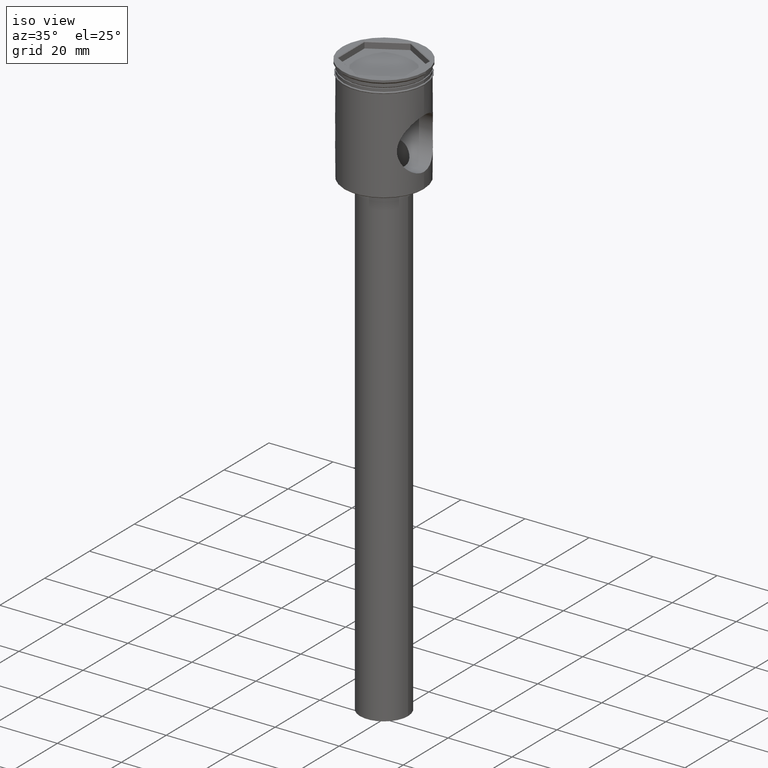
[diagram: clean part render]
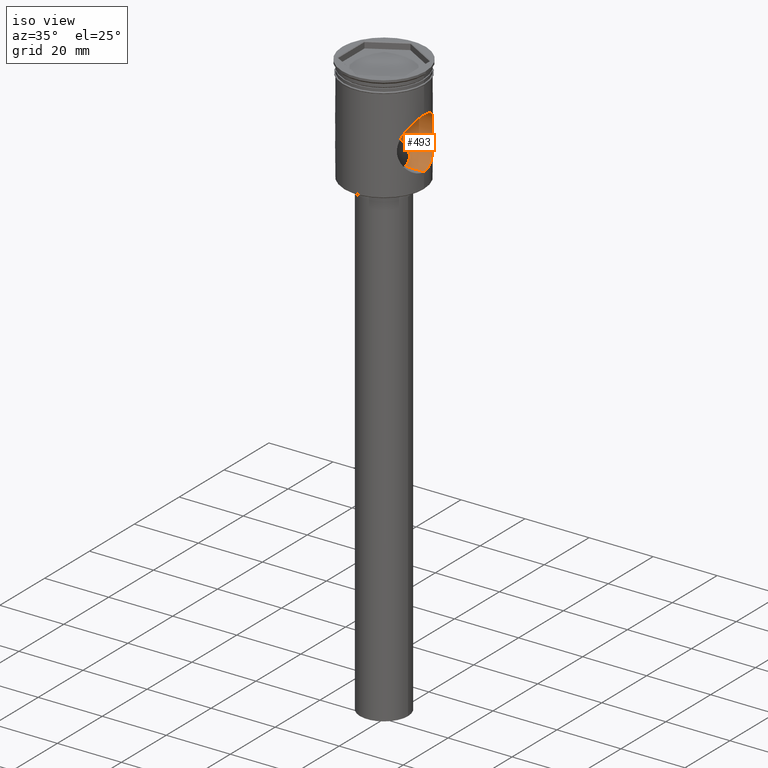
[diagram: same view with one face highlighted and labeled with its STEP entity id]
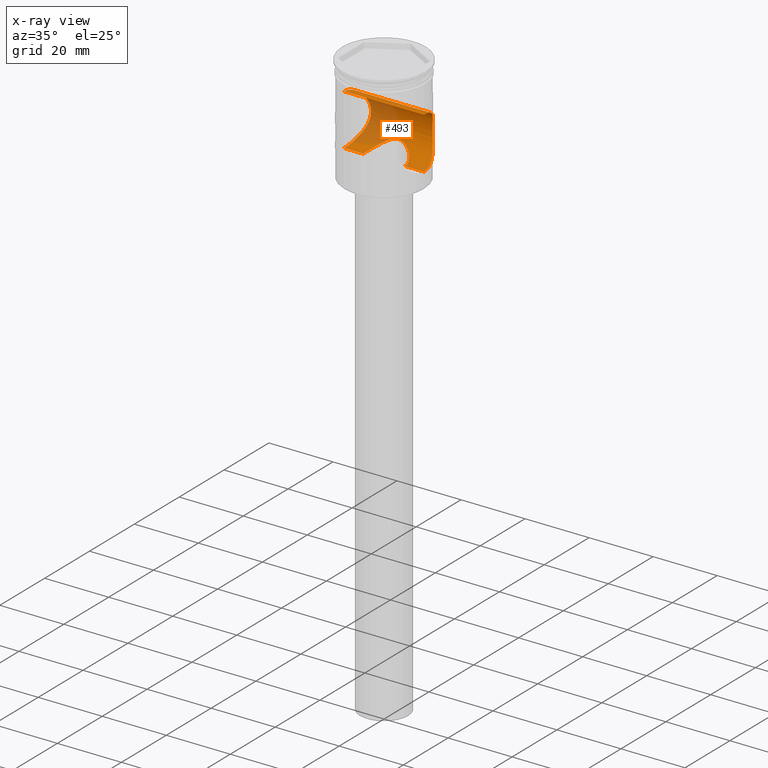
[diagram: x-ray of the same camera — body ghosted, the highlighted face saturated]
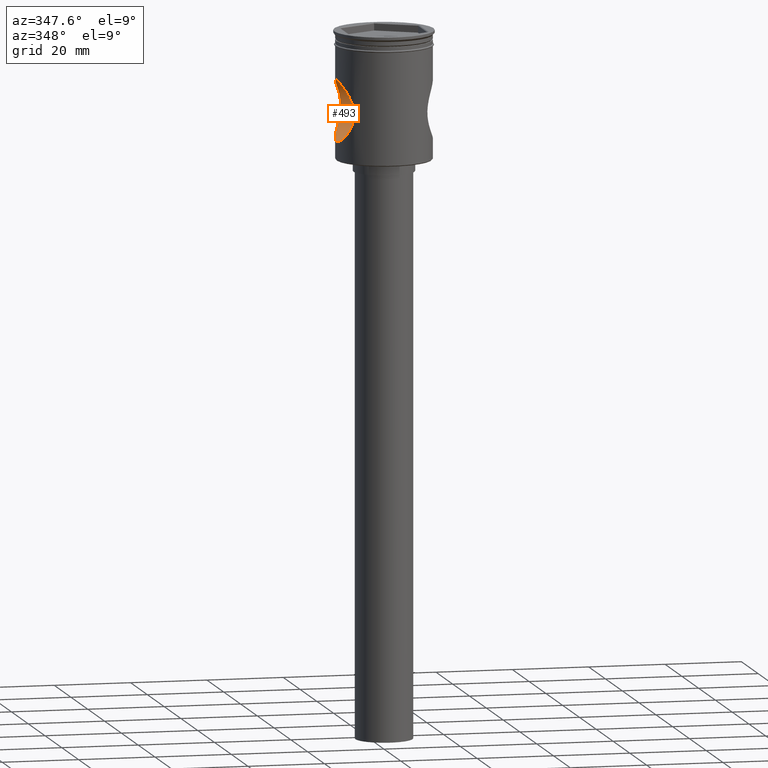
[diagram: same view with one face highlighted and labeled with its STEP entity id]
A machine part, iso view. The second image highlights one B-rep face of the part: STEP entity #493.
The next image is the same camera in x-ray: the body ghosted, the highlighted face saturated — about 34% of this face is hidden behind the body in this view.
A second angle (auxiliary view) of the same face is appended — the face is thin or edge-on in the first view.
In plain terms, the highlighted cylindrical surface (edge-blend (fillet) strip) has radius 8 mm, axis along (1, -0, -0).
Its self-contained STEP definition (entity closure, byte-faithful):
#17 = CARTESIAN_POINT ( 'NONE',  ( 4.842386437345511219, 4.354578003074164982, -27.21988011370752858 ) ) ;
#23 = CARTESIAN_POINT ( 'NONE',  ( -0.4366942562931317440, 6.489173612761688581, -25.17890074306679082 ) ) ;
#32 = CARTESIAN_POINT ( 'NONE',  ( -3.443395240271013957, 5.516634271870333173, -26.29565160357131148 ) ) ;
#34 = CARTESIAN_POINT ( 'NONE',  ( -10.95468395994246968, 6.033861169773390820, -15.22247198273765179 ) ) ;
#37 = CARTESIAN_POINT ( 'NONE',  ( 6.488266832233685832, 0.4514152564364683484, -28.49045779491664732 ) ) ;
#44 = CARTESIAN_POINT ( 'NONE',  ( 5.105775027705655056, 4.044212011964167353, -27.41335446562899136 ) ) ;
#56 = CARTESIAN_POINT ( 'NONE',  ( -12.49104983426664717, 0.5449417703514869427, -28.48603655335807261 ) ) ;
#65 = CARTESIAN_POINT ( 'NONE',  ( -13.00000000000000178, 0.000000000000000000, -20.50000000000000355 ) ) ;
#72 = CARTESIAN_POINT ( 'NONE',  ( -11.32275814528974500, 5.311017539796694997, -26.50426606429732601 ) ) ;
#78 = VECTOR ( 'NONE', #1514, 1000.000000000000000 ) ;
#81 = CARTESIAN_POINT ( 'NONE',  ( -11.49979938796715118, 4.920626020369353704, -26.82866744699284567 ) ) ;
#83 = CARTESIAN_POINT ( 'NONE',  ( 10.24149294623592965, 7.171072586796541692, -16.91585289741309595 ) ) ;
#92 = CARTESIAN_POINT ( 'NONE',  ( 10.41453676133786033, 6.920961814154462211, -24.54462048307798128 ) ) ;
#100 = CARTESIAN_POINT ( 'NONE',  ( 9.604895432773121300, 7.999748985399197210, -20.77841958597585403 ) ) ;
#102 = AXIS2_PLACEMENT_3D ( 'NONE', #65, #698, #949 ) ;
#110 = CARTESIAN_POINT ( 'NONE',  ( 11.50119995780600846, 4.917095492503141152, -14.16884486330757120 ) ) ;
#111 = B_SPLINE_CURVE_WITH_KNOTS ( 'NONE', 3,
 ( #1212, #1105, #37, #1217, #391, #627, #507, #985, #737, #1465, #872, #44, #17, #1346, #277, #1330, #1090, #152, #760, #257, #146, #611, #167, #1230, #1096, #979, #23, #514, #494, #633, #1476, #974, #383, #1455, #32, #376, #619, #1460, #865, #553, #1246, #887, #1392, #655, #1031, #1138, #424, #433 ),
 .UNSPECIFIED., .F., .F.,
 ( 4, 2, 2, 2, 2, 2, 2, 2, 2, 2, 2, 2, 2, 2, 2, 2, 2, 2, 2, 2, 2, 2, 2, 4 ),
 ( 0.02158872808425614867, 0.02226116012117745555, 0.02293359215809876589, 0.02360602419502007276, 0.02427845623194137964, 0.02562332030578399686, 0.02696818437962661408, 0.02831304845346922783, 0.02965791252731184158, 0.03033034456423315192, 0.03100277660115446227, 0.03167520863807576914, 0.03234764067499707602, 0.03302007271191838289, 0.03369250474883968977, 0.03503736882268231045, 0.03570980085960362427, 0.03638223289652493114, 0.03772709697036755183, 0.03839952900728886565, 0.03907196104421017946, 0.04041682511805280709, 0.04176168919189544859, 0.04310655326573807622 ),
 .UNSPECIFIED. ) ;
#117 = CARTESIAN_POINT ( 'NONE',  ( 12.22805391727019675, 2.640680350465369308, -28.06978779834291515 ) ) ;
#118 = ORIENTED_EDGE ( 'NONE', *, *, #1341, .T. ) ;
#146 = CARTESIAN_POINT ( 'NONE',  ( 1.567728193471718878, 6.311950699062609083, -25.41578842498790181 ) ) ;
#152 = CARTESIAN_POINT ( 'NONE',  ( 2.371671329341344503, 6.055323795821049515, -25.72950291132741540 ) ) ;
#155 = CARTESIAN_POINT ( 'NONE',  ( -11.58231855636714513, 4.706562070356852701, -14.02588132130155962 ) ) ;
#156 = CARTESIAN_POINT ( 'NONE',  ( 12.45636595211378861, 1.077990071471292666, -12.56832314098377346 ) ) ;
#167 = CARTESIAN_POINT ( 'NONE',  ( 0.9182724156034712815, 6.438696789920491881, -25.24814010544798393 ) ) ;
#192 = EDGE_CURVE ( 'NONE', #381, #250, #111, .T. ) ;
#197 = CARTESIAN_POINT ( 'NONE',  ( -11.04913184632836121, 5.848685773200739568, -25.96419292266337919 ) ) ;
#203 = CARTESIAN_POINT ( 'NONE',  ( -6.500000000000000888, 0.000000000000000000, -28.50000000000000355 ) ) ;
#206 = CARTESIAN_POINT ( 'NONE',  ( -12.49999999999999645, 0.000000000000000000, -28.50000000000000355 ) ) ;
#214 = CARTESIAN_POINT ( 'NONE',  ( 12.49999999999999289, 0.5455086926773380362, -28.50000000000000000 ) ) ;
#222 = CARTESIAN_POINT ( 'NONE',  ( 6.500000000000000888, -1.382494513617927609E-22, -28.50000000000000711 ) ) ;
#250 = VERTEX_POINT ( 'NONE', #203 ) ;
#257 = CARTESIAN_POINT ( 'NONE',  ( 1.776713398838708491, 6.256010653273696320, -25.48724118525975513 ) ) ;
#265 = CARTESIAN_POINT ( 'NONE',  ( -12.04102128605738464, 3.365482873782087658, -13.23757297846051451 ) ) ;
#277 = CARTESIAN_POINT ( 'NONE',  ( 3.959905581841436817, 5.170370486631040485, -26.61232910843518695 ) ) ;
#280 = CARTESIAN_POINT ( 'NONE',  ( -12.49999999999999645, 1.530843252841608374E-15, -12.50000000000000178 ) ) ;
#287 = CARTESIAN_POINT ( 'NONE',  ( -11.82426725651903610, 4.061341696050350336, -13.60264837205234301 ) ) ;
#294 = CARTESIAN_POINT ( 'NONE',  ( -12.32614486164619372, 2.144181392186815138, -28.22599079984303927 ) ) ;
#318 = CARTESIAN_POINT ( 'NONE',  ( -9.615781582082339796, 7.986738915949612938, -21.03451077291008531 ) ) ;
#319 = CARTESIAN_POINT ( 'NONE',  ( 10.24633185769106802, 7.164154995734958398, -24.09758546550434488 ) ) ;
#322 = ORIENTED_EDGE ( 'NONE', *, *, #1118, .T. ) ;
#327 = CARTESIAN_POINT ( 'NONE',  ( -10.95618371808392233, 6.020532543485914267, -25.77431588019686615 ) ) ;
#330 = CARTESIAN_POINT ( 'NONE',  ( 10.77000853576665840, 6.353706358841936463, -15.61224821672883678 ) ) ;
#337 = CARTESIAN_POINT ( 'NONE',  ( 12.32774079225238495, 2.134726252461476292, -12.77147006255823136 ) ) ;
#376 = CARTESIAN_POINT ( 'NONE',  ( -3.943738554741762492, 5.182453481993340105, -26.60192598326029412 ) ) ;
#381 = VERTEX_POINT ( 'NONE', #222 ) ;
#383 = CARTESIAN_POINT ( 'NONE',  ( -2.911808415109434556, 5.814893890624561301, -25.99602155835484396 ) ) ;
#386 = CARTESIAN_POINT ( 'NONE',  ( -11.22925266099212571, 5.494954958430610326, -14.68017047912132789 ) ) ;
#391 = CARTESIAN_POINT ( 'NONE',  ( 6.406015369792370073, 1.123501218572548588, -28.42378064234844359 ) ) ;
#402 = CARTESIAN_POINT ( 'NONE',  ( -12.45680753857803147, 1.072351860696458381, -12.56763034230890774 ) ) ;
#424 = CARTESIAN_POINT ( 'NONE',  ( -6.500000000000000888, 0.4558328422930144064, -28.50000000000000355 ) ) ;
#428 = CARTESIAN_POINT ( 'NONE',  ( -12.49999999999999645, 0.2724455289350976028, -28.50000000000000000 ) ) ;
#433 = CARTESIAN_POINT ( 'NONE',  ( -6.500000000000000888, 0.000000000000000000, -28.50000000000000355 ) ) ;
#443 = CARTESIAN_POINT ( 'NONE',  ( -10.77171733329285530, 6.344673314144587017, -25.37958406506655251 ) ) ;
#445 = CARTESIAN_POINT ( 'NONE',  ( 9.778867081615890910, 7.786427190026567580, -18.64438907348872476 ) ) ;
#455 = CARTESIAN_POINT ( 'NONE',  ( 12.03968295628938812, 3.370349911399050047, -13.23978673405736117 ) ) ;
#463 = CARTESIAN_POINT ( 'NONE',  ( 10.02037738876441253, 7.473797691934480625, -17.63469963449613331 ) ) ;
#493 = ADVANCED_FACE ( 'NONE', ( #1255 ), #662, .F. ) ;
#494 = CARTESIAN_POINT ( 'NONE',  ( -1.102789313917039493, 6.409565676674444212, -25.28778943264921608 ) ) ;
#504 = CARTESIAN_POINT ( 'NONE',  ( -10.76964293615448653, 6.354292206984882618, -15.61311065325000591 ) ) ;
#507 = CARTESIAN_POINT ( 'NONE',  ( 6.257880797991184352, 1.771240096149340859, -28.30445041192191979 ) ) ;
#514 = CARTESIAN_POINT ( 'NONE',  ( -0.8819394974814362964, 6.443776747593307874, -25.24122637797536584 ) ) ;
#534 = CARTESIAN_POINT ( 'NONE',  ( -10.24171529436143402, 7.170737983946684935, -16.91536847051583692 ) ) ;
#545 = CARTESIAN_POINT ( 'NONE',  ( -12.22681975302657520, 2.645907749991195601, -28.06777968347508434 ) ) ;
#553 = CARTESIAN_POINT ( 'NONE',  ( -5.093693961073637588, 4.043069069474488408, -27.40561135238450063 ) ) ;
#558 = CARTESIAN_POINT ( 'NONE',  ( 10.95569943340932717, 6.032167288263485361, -15.22028665405100512 ) ) ;
#566 = CARTESIAN_POINT ( 'NONE',  ( 9.951847861737379120, 7.567903109691757280, -23.14472692481474425 ) ) ;
#571 = EDGE_CURVE ( 'NONE', #1541, #1404, #1548, .T. ) ;
#574 = CARTESIAN_POINT ( 'NONE',  ( 9.662429422409399393, 7.930242071786063995, -21.58801890745425212 ) ) ;
#583 = CARTESIAN_POINT ( 'NONE',  ( 9.831927431485986801, 7.719646222588846030, -18.38418844340872127 ) ) ;
#590 = CARTESIAN_POINT ( 'NONE',  ( 11.83084558445469980, 4.061114290533304860, -27.41204444593460821 ) ) ;
#609 = CARTESIAN_POINT ( 'NONE',  ( -13.00000000000000178, 0.000000000000000000, -28.50000000000000355 ) ) ;
#611 = CARTESIAN_POINT ( 'NONE',  ( 1.136941649589109815, 6.403581576073868575, -25.29581489063218314 ) ) ;
#614 = CARTESIAN_POINT ( 'NONE',  ( 12.49999999999999822, 0.2689421781267094524, -12.50000000000000178 ) ) ;
#619 = CARTESIAN_POINT ( 'NONE',  ( -4.254044028838499081, 4.931232074828433731, -26.80903156589973335 ) ) ;
#624 = CARTESIAN_POINT ( 'NONE',  ( -11.49685725809058567, 4.911092195449596076, -14.17966420493785051 ) ) ;
#627 = CARTESIAN_POINT ( 'NONE',  ( 6.314429166602933741, 1.557970540833260698, -28.34992244866697320 ) ) ;
#633 = CARTESIAN_POINT ( 'NONE',  ( -1.750904379679536049, 6.275272073080965463, -25.46415145505980249 ) ) ;
#648 = CARTESIAN_POINT ( 'NONE',  ( -9.947500648090192854, 7.573601934444265105, -17.87138436146137366 ) ) ;
#655 = CARTESIAN_POINT ( 'NONE',  ( -6.130100723253989692, 2.204832021863320168, -28.20172597471266585 ) ) ;
#658 = CARTESIAN_POINT ( 'NONE',  ( -9.694572521403607368, 7.891132293869996595, -21.84205955273028010 ) ) ;
#662 = CYLINDRICAL_SURFACE ( 'NONE', #102, 8.000000000000000000 ) ;
#665 = CARTESIAN_POINT ( 'NONE',  ( -10.02253038761470982, 7.470924704462464483, -23.37288695449094433 ) ) ;
#681 = CARTESIAN_POINT ( 'NONE',  ( -10.41397768299478166, 6.921782864204723218, -24.54315654720842232 ) ) ;
#689 = CARTESIAN_POINT ( 'NONE',  ( 11.74563317290944831, 4.282692903467038903, -13.73805650301568093 ) ) ;
#690 = VERTEX_POINT ( 'NONE', #1464 ) ;
#698 = DIRECTION ( 'NONE',  ( 1.000000000000000000, -0.000000000000000000, -0.000000000000000000 ) ) ;
#699 = VECTOR ( 'NONE', #1094, 1000.000000000000000 ) ;
#716 = CARTESIAN_POINT ( 'NONE',  ( 9.695983281617307270, 7.889400511741192723, -21.85205995452213301 ) ) ;
#731 = EDGE_CURVE ( 'NONE', #381, #1541, #966, .T. ) ;
#737 = CARTESIAN_POINT ( 'NONE',  ( 6.046048051909437504, 2.396210685450310685, -28.13556698857915350 ) ) ;
#739 = ORIENTED_EDGE ( 'NONE', *, *, #571, .T. ) ;
#745 = CARTESIAN_POINT ( 'NONE',  ( -12.32814927920563264, 2.133064077394900337, -12.77081634138414401 ) ) ;
#753 = VERTEX_POINT ( 'NONE', #280 ) ;
#760 = CARTESIAN_POINT ( 'NONE',  ( 2.178074106906161322, 6.127835913298589787, -25.64391591625614097 ) ) ;
#781 = CARTESIAN_POINT ( 'NONE',  ( -9.833011243020195025, 7.718267162390876734, -22.62081358739451176 ) ) ;
#783 = LINE ( 'NONE', #1165, #78 ) ;
#793 = CARTESIAN_POINT ( 'NONE',  ( -9.660877953051818068, 7.932130301633682379, -21.57471352266809106 ) ) ;
#801 = CARTESIAN_POINT ( 'NONE',  ( -11.97255694559601125, 3.600821400007697459, -27.64858792036709545 ) ) ;
#807 = CARTESIAN_POINT ( 'NONE',  ( -9.823930086259025529, 7.730428572254550268, -18.37155159375936719 ) ) ;
#819 = CARTESIAN_POINT ( 'NONE',  ( -11.82492588981186543, 4.059453444830931623, -27.39848256787114167 ) ) ;
#820 = CARTESIAN_POINT ( 'NONE',  ( 12.32937529947440147, 2.124696089697953649, -28.23112845639077761 ) ) ;
#837 = CARTESIAN_POINT ( 'NONE',  ( 11.50038868166273787, 4.919615502726670364, -26.82980181432884237 ) ) ;
#865 = CARTESIAN_POINT ( 'NONE',  ( -4.828471368447618595, 4.356373481888452304, -27.21236811691835200 ) ) ;
#872 = CARTESIAN_POINT ( 'NONE',  ( 5.581559358810435079, 3.357198915067975520, -27.77181794394044090 ) ) ;
#882 = CARTESIAN_POINT ( 'NONE',  ( -12.43066710745117298, 1.341388092945101862, -12.60866053316501834 ) ) ;
#887 = CARTESIAN_POINT ( 'NONE',  ( -5.573416845374117301, 3.370210849722758528, -27.76559106472542027 ) ) ;
#909 = CARTESIAN_POINT ( 'NONE',  ( -13.00000000000000178, 9.797174393178827630E-16, -12.50000000000000178 ) ) ;
#920 = ORIENTED_EDGE ( 'NONE', *, *, #1377, .F. ) ;
#921 = CARTESIAN_POINT ( 'NONE',  ( -9.604845950803452936, 7.999808392904742327, -19.96072037956296086 ) ) ;
#926 = CARTESIAN_POINT ( 'NONE',  ( 10.41350288148657377, 6.922544769963280054, -16.45796141815630520 ) ) ;
#928 = CARTESIAN_POINT ( 'NONE',  ( 12.49999999999999645, 0.000000000000000000, -28.50000000000000355 ) ) ;
#934 = CARTESIAN_POINT ( 'NONE',  ( 9.616846497738414712, 7.985458352474513966, -21.05224936486945353 ) ) ;
#941 = CARTESIAN_POINT ( 'NONE',  ( 12.43000214087199851, 1.347259841825428239, -12.60970857887207153 ) ) ;
#949 = DIRECTION ( 'NONE',  ( 0.000000000000000000, 0.000000000000000000, -1.000000000000000000 ) ) ;
#966 = LINE ( 'NONE', #609, #699 ) ;
#974 = CARTESIAN_POINT ( 'NONE',  ( -2.725180543584479587, 5.904775050584463614, -25.89893258064565629 ) ) ;
#977 = CARTESIAN_POINT ( 'NONE',  ( -12.22865895483605314, 2.638290072440495848, -12.92921996348514924 ) ) ;
#979 = CARTESIAN_POINT ( 'NONE',  ( -0.2112592527433082568, 6.500583903981633327, -25.16287572114162430 ) ) ;
#985 = CARTESIAN_POINT ( 'NONE',  ( 6.123853245883847052, 2.190156383218281100, -28.19739908848461241 ) ) ;
#1007 = LINE ( 'NONE', #909, #1301 ) ;
#1031 = CARTESIAN_POINT ( 'NONE',  ( -6.265158911055189073, 1.788055899293668594, -28.31019858664084055 ) ) ;
#1043 = CARTESIAN_POINT ( 'NONE',  ( -9.604607193058786407, 8.000095042092121744, -20.76536489131949992 ) ) ;
#1057 = CARTESIAN_POINT ( 'NONE',  ( 11.82354718861211573, 4.063371894608730273, -13.60388813298232513 ) ) ;
#1066 = CARTESIAN_POINT ( 'NONE',  ( 10.95759851502932669, 6.017955333637137194, -25.77724630296188479 ) ) ;
#1072 = CARTESIAN_POINT ( 'NONE',  ( 10.68141965030587848, 6.495024738260809727, -25.17753358840528932 ) ) ;
#1090 = CARTESIAN_POINT ( 'NONE',  ( 2.935273651752975166, 5.813884523788740211, -26.00066674425234226 ) ) ;
#1091 = ORIENTED_EDGE ( 'NONE', *, *, #192, .F. ) ;
#1094 = DIRECTION ( 'NONE',  ( 1.000000000000000000, -0.000000000000000000, -0.000000000000000000 ) ) ;
#1096 = CARTESIAN_POINT ( 'NONE',  ( 0.2457798980664020194, 6.499370262285513178, -25.16456721221122095 ) ) ;
#1098 = CARTESIAN_POINT ( 'NONE',  ( -12.49134899006260824, 0.5368360781239408519, -12.51349676487751594 ) ) ;
#1105 = CARTESIAN_POINT ( 'NONE',  ( 6.500000000000005329, 0.2246396968458180821, -28.50000000000001421 ) ) ;
#1107 = CARTESIAN_POINT ( 'NONE',  ( -11.32051845556725489, 5.304942531477344403, -14.50641544213543455 ) ) ;
#1118 = EDGE_CURVE ( 'NONE', #690, #250, #783, .T. ) ;
#1132 = CARTESIAN_POINT ( 'NONE',  ( -12.45574482229450020, 1.085222749987466040, -28.43070192023093412 ) ) ;
#1138 = CARTESIAN_POINT ( 'NONE',  ( -6.450807618150798284, 0.9145715682114388123, -28.45989351112090660 ) ) ;
#1148 = CARTESIAN_POINT ( 'NONE',  ( -10.24506394556385125, 7.166030281330027840, -24.09455026104629738 ) ) ;
#1157 = DIRECTION ( 'NONE',  ( 1.000000000000000000, -0.000000000000000000, -0.000000000000000000 ) ) ;
#1164 = CARTESIAN_POINT ( 'NONE',  ( -9.650481006454381117, 7.945901119098953025, -19.42646661241498052 ) ) ;
#1165 = CARTESIAN_POINT ( 'NONE',  ( -13.00000000000000178, 0.000000000000000000, -28.50000000000000355 ) ) ;
#1166 = CARTESIAN_POINT ( 'NONE',  ( 12.49999999999999645, 0.000000000000000000, -28.50000000000000355 ) ) ;
#1171 = CARTESIAN_POINT ( 'NONE',  ( 12.46447579769007774, 1.079199628273470157, -28.44481018307721243 ) ) ;
#1179 = CARTESIAN_POINT ( 'NONE',  ( 11.32278361962054802, 5.310903790031502147, -26.50427824932999243 ) ) ;
#1186 = CARTESIAN_POINT ( 'NONE',  ( 9.604276544737977872, 8.000492014107765115, -19.96508625629939004 ) ) ;
#1202 = CARTESIAN_POINT ( 'NONE',  ( 12.49132987171840270, 0.5383245889663403894, -12.51352599534948418 ) ) ;
#1212 = CARTESIAN_POINT ( 'NONE',  ( 6.500000000000000888, -1.382494513617927609E-22, -28.50000000000000711 ) ) ;
#1216 = CARTESIAN_POINT ( 'NONE',  ( 12.49999999999999645, -3.475392982267206074E-20, -12.50000000000000178 ) ) ;
#1217 = CARTESIAN_POINT ( 'NONE',  ( 6.441058188089108683, 0.9023035174804565628, -28.45217202205977003 ) ) ;
#1219 = CARTESIAN_POINT ( 'NONE',  ( -11.74602063590885059, 4.281685285502878635, -13.73737400827888422 ) ) ;
#1230 = CARTESIAN_POINT ( 'NONE',  ( 0.4734485262106122860, 6.486592871054853937, -25.18249546061458943 ) ) ;
#1246 = CARTESIAN_POINT ( 'NONE',  ( -5.219067298266469201, 3.879969157369397070, -27.49875867641640781 ) ) ;
#1255 = FACE_OUTER_BOUND ( 'NONE', #1437, .T. ) ;
#1275 = CARTESIAN_POINT ( 'NONE',  ( -12.42914744973298191, 1.355224675475571683, -28.38894657095907803 ) ) ;
#1281 = CARTESIAN_POINT ( 'NONE',  ( 11.32358097886961446, 5.309510908151877651, -14.49404386253077881 ) ) ;
#1290 = CARTESIAN_POINT ( 'NONE',  ( 11.97893811598799729, 3.606041726093997646, -27.66040104288469692 ) ) ;
#1295 = ORIENTED_EDGE ( 'NONE', *, *, #731, .T. ) ;
#1301 = VECTOR ( 'NONE', #1157, 1000.000000000000000 ) ;
#1328 = CARTESIAN_POINT ( 'NONE',  ( -12.49999999999999645, 1.530843252841608374E-15, -12.50000000000000178 ) ) ;
#1330 = CARTESIAN_POINT ( 'NONE',  ( 3.288402270286638007, 5.621387168208392460, -26.20028985262604948 ) ) ;
#1341 = EDGE_CURVE ( 'NONE', #753, #690, #1349, .T. ) ;
#1346 = CARTESIAN_POINT ( 'NONE',  ( 4.269936707674456322, 4.917183798262914962, -26.81984507892083514 ) ) ;
#1349 = B_SPLINE_CURVE_WITH_KNOTS ( 'NONE', 3,
 ( #1328, #1480, #1098, #402, #882, #745, #977, #265, #1360, #287, #1219, #155, #624, #1107, #386, #34, #504, #1463, #534, #648, #807, #1164, #921, #1043, #318, #793, #658, #1520, #781, #1403, #665, #1148, #681, #1386, #443, #327, #197, #72, #81, #1486, #819, #801, #1369, #545, #294, #1275, #1132, #56, #428, #206 ),
 .UNSPECIFIED., .F., .F.,
 ( 4, 2, 2, 2, 2, 2, 2, 2, 2, 2, 2, 2, 2, 2, 2, 2, 2, 2, 2, 2, 2, 2, 2, 2, 4 ),
 ( 0.02576999226182778366, 0.02657439273090745832, 0.02737879319998713298, 0.02898759413814647884, 0.02979199460722615350, 0.03059639507630582123, 0.03140079554538549589, 0.03220519601446516361, 0.03381399695262450600, 0.03542279789078384145, 0.03703159882894318383, 0.03864039976710252622, 0.03944480023618218700, 0.04024920070526185473, 0.04105360117434152245, 0.04185800164342118324, 0.04346680258158051868, 0.04427120305066018641, 0.04507560351973985413, 0.04668440445789921039, 0.04748880492697887812, 0.04829320539605855278, 0.04990200633421790211, 0.05070640680329757677, 0.05151080727237725143 ),
 .UNSPECIFIED. ) ;
#1360 = CARTESIAN_POINT ( 'NONE',  ( -11.97168173856675466, 3.603696557166357284, -13.35287981243517308 ) ) ;
#1369 = CARTESIAN_POINT ( 'NONE',  ( -12.04078069653766647, 3.366168072378722620, -27.76202050384523190 ) ) ;
#1377 = EDGE_CURVE ( 'NONE', #753, #1404, #1007, .T. ) ;
#1386 = CARTESIAN_POINT ( 'NONE',  ( -10.68057655226026803, 6.496405684036826500, -25.17560278568680943 ) ) ;
#1392 = CARTESIAN_POINT ( 'NONE',  ( -5.781438186486210107, 3.002397644835207213, -27.92721183328479384 ) ) ;
#1395 = CARTESIAN_POINT ( 'NONE',  ( 10.77326865999855166, 6.342037053953381687, -25.38299917530804350 ) ) ;
#1403 = CARTESIAN_POINT ( 'NONE',  ( -9.953764986108037505, 7.561899278404374591, -23.12434326371112192 ) ) ;
#1404 = VERTEX_POINT ( 'NONE', #1504 ) ;
#1406 = CARTESIAN_POINT ( 'NONE',  ( 11.04973041360231534, 5.847541344671410180, -25.96539333561140950 ) ) ;
#1413 = CARTESIAN_POINT ( 'NONE',  ( 12.22838080166956054, 2.639999966342853277, -12.92964855857681350 ) ) ;
#1437 = EDGE_LOOP ( 'NONE', ( #920, #118, #322, #1091, #1295, #739 ) ) ;
#1455 = CARTESIAN_POINT ( 'NONE',  ( -3.270728657008269202, 5.620849869703855362, -26.19432091397860773 ) ) ;
#1460 = CARTESIAN_POINT ( 'NONE',  ( -4.688360302415939707, 4.506690888945970030, -27.11210779557663741 ) ) ;
#1463 = CARTESIAN_POINT ( 'NONE',  ( -10.41381587689204302, 6.922042856426296353, -16.45722377159888694 ) ) ;
#1464 = CARTESIAN_POINT ( 'NONE',  ( -12.49999999999999645, 0.000000000000000000, -28.50000000000000355 ) ) ;
#1465 = CARTESIAN_POINT ( 'NONE',  ( 5.787817701515795221, 2.989524549870262504, -27.93219876687286174 ) ) ;
#1476 = CARTESIAN_POINT ( 'NONE',  ( -2.152469141237660200, 6.147258427019662186, -25.62548333963568581 ) ) ;
#1480 = CARTESIAN_POINT ( 'NONE',  ( -12.49999999999999822, 0.2686376769289312016, -12.50000000000000533 ) ) ;
#1486 = CARTESIAN_POINT ( 'NONE',  ( -11.74577852983650494, 4.282367724400621967, -27.26220930574858059 ) ) ;
#1504 = CARTESIAN_POINT ( 'NONE',  ( 12.49999999999999645, -3.475392982267206074E-20, -12.50000000000000178 ) ) ;
#1514 = DIRECTION ( 'NONE',  ( 1.000000000000000000, -0.000000000000000000, -0.000000000000000000 ) ) ;
#1516 = CARTESIAN_POINT ( 'NONE',  ( 9.825351555881612242, 7.728608913096384647, -22.63340818634064533 ) ) ;
#1520 = CARTESIAN_POINT ( 'NONE',  ( -9.780592607289706919, 7.784260626568318742, -22.36450508717212671 ) ) ;
#1524 = CARTESIAN_POINT ( 'NONE',  ( 9.650015180279874372, 7.946443617263751591, -19.43182631452544484 ) ) ;
#1537 = CARTESIAN_POINT ( 'NONE',  ( 11.97039897339418246, 3.607881330226543781, -13.35503377591462559 ) ) ;
#1541 = VERTEX_POINT ( 'NONE', #928 ) ;
#1548 = B_SPLINE_CURVE_WITH_KNOTS ( 'NONE', 3,
 ( #1166, #214, #1171, #820, #117, #1290, #590, #837, #1179, #1406, #1066, #1395, #1072, #92, #319, #566, #1516, #716, #574, #934, #100, #1186, #1524, #445, #583, #1552, #463, #83, #926, #330, #558, #1281, #110, #689, #1057, #1537, #455, #1413, #337, #941, #156, #1202, #614, #1216 ),
 .UNSPECIFIED., .F., .F.,
 ( 4, 2, 2, 2, 2, 2, 2, 2, 2, 2, 2, 2, 2, 2, 2, 2, 2, 2, 2, 2, 2, 4 ),
 ( 0.000000000000000000, 0.001610624516364215879, 0.003221249032728431758, 0.004831873549092647636, 0.006442498065456863515, 0.007247810323638976225, 0.008053122581821088935, 0.009663747098185310885, 0.01127437161454953631, 0.01207968387273164815, 0.01288499613091376172, 0.01449562064727799755, 0.01530093290546011807, 0.01610624516364224379, 0.01771686968000649870, 0.01932749419637075361, 0.02093811871273501199, 0.02174343097091713944, 0.02254874322909926690, 0.02415936774546352528, 0.02496468000364565273, 0.02576999226182778019 ),
 .UNSPECIFIED. ) ;
#1552 = CARTESIAN_POINT ( 'NONE',  ( 9.952560460729568348, 7.563483000275685875, -17.88020587650935056 ) ) ;